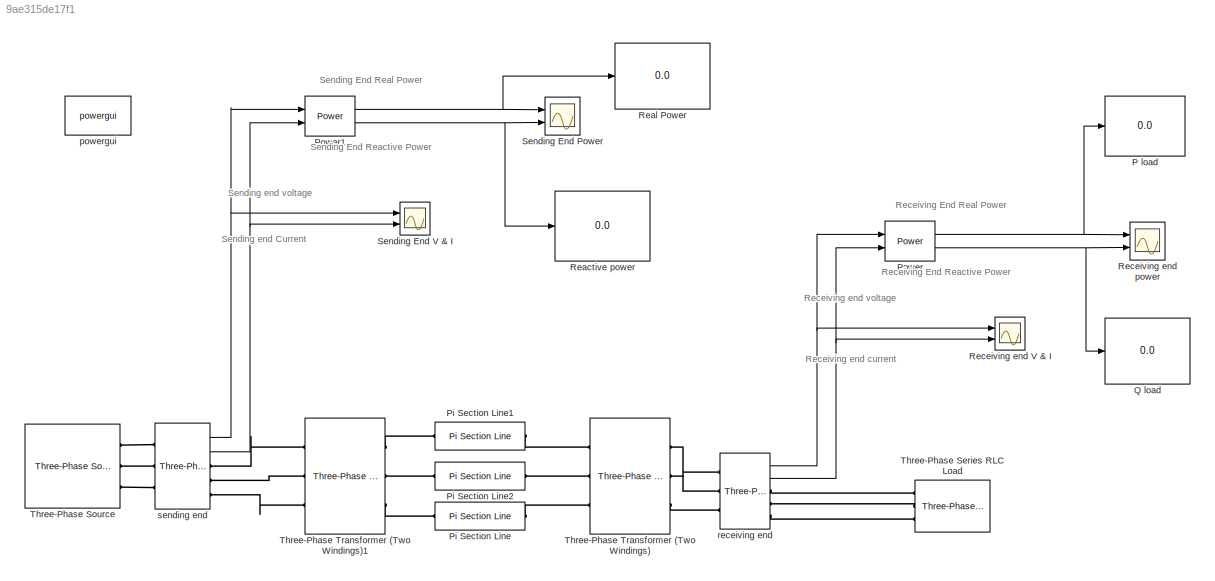
MODEL slx_9ae315de17f1
KIND model
CONFIG AbsTol = auto
CONFIG EnableMultiTasking = off
CONFIG FixedStep = auto
CONFIG MaxStep = auto
CONFIG MinStep = auto
CONFIG RelTol = 1e-3
CONFIG SampleTimeConstraint = Unconstrained
CONFIG Solver = ode23tb
CONFIG SolverName = ode23tb
CONFIG StartTime = 0.0
CONFIG StopTime = 1
BLOCK [Display] P load
  Decimation = 1
  Ports = [1]
BLOCK [Reference] Pi Section Line  REF=powerlib/Elements/Pi Section Line
  AttributesFormatString = \n
  Ports = [0, 0, 0, 0, 0, 1, 1]
  SourceBlock = powerlib/Elements/Pi Section Line
  SourceProductBaseCode = PS
  SourceProductName = Simscape Electrical
  SourceType = Pi Section Line
BLOCK [Reference] Pi Section Line1  REF=powerlib/Elements/Pi Section Line
  AttributesFormatString = \n
  Ports = [0, 0, 0, 0, 0, 1, 1]
  SourceBlock = powerlib/Elements/Pi Section Line
  SourceProductBaseCode = PS
  SourceProductName = Simscape Electrical
  SourceType = Pi Section Line
BLOCK [Reference] Pi Section Line2  REF=powerlib/Elements/Pi Section Line
  AttributesFormatString = \n
  Ports = [0, 0, 0, 0, 0, 1, 1]
  SourceBlock = powerlib/Elements/Pi Section Line
  SourceProductBaseCode = PS
  SourceProductName = Simscape Electrical
  SourceType = Pi Section Line
BLOCK [Reference] Power  REF=powerlib_meascontrol/Measurements/Power
  Ports = [2, 2]
  SourceBlock = powerlib_meascontrol/Measurements/Power
  SourceProductBaseCode = PS
  SourceProductName = Simscape Electrical
  SourceType = Power
BLOCK [Reference] Power1  REF=powerlib_meascontrol/Measurements/Power
  Ports = [2, 2]
  SourceBlock = powerlib_meascontrol/Measurements/Power
  SourceProductBaseCode = PS
  SourceProductName = Simscape Electrical
  SourceType = Power
BLOCK [Display] Q load
  Decimation = 1
  Ports = [1]
BLOCK [Display] Reactive power
  Decimation = 1
  Ports = [1]
BLOCK [Display] Real Power
  Decimation = 1
  Ports = [1]
BLOCK [Scope] Receiving end V & I
  Floating = off
  NumInputPorts = 2
  Ports = [2]
  ScopeSpecificationString = Simulink.scopes.TimeScopeBlockCfg('CurrentConfiguration', extmgr.ConfigurationSet(extmgr.Configuration('Core','General UI',true),extmgr.Configuration('Core','Source UI',true),extmgr.Configuration('Sources','WiredSimulink',true,'DataLoggingVariableName','ScopeData3'),extmgr.Configuration('Visuals','Time Domain',true,'SerializedDisplays',{struct('MinYLimReal','-9800.59055','MaxYLimReal','10279.415',...<+2256ch>
BLOCK [Scope] Receiving end power
  Floating = off
  NumInputPorts = 2
  Ports = [2]
  ScopeSpecificationString = Simulink.scopes.TimeScopeBlockCfg('CurrentConfiguration', extmgr.ConfigurationSet(extmgr.Configuration('Core','General UI',true),extmgr.Configuration('Core','Source UI',true),extmgr.Configuration('Sources','WiredSimulink',true,'DataLoggingVariableName','ScopeData2'),extmgr.Configuration('Visuals','Time Domain',true,'SerializedDisplays',{struct('MinYLimReal','399590.84842','MaxYLimReal','403773.433...<+2199ch>
BLOCK [Scope] Sending End Power
  Floating = off
  NumInputPorts = 2
  Ports = [2]
  ScopeSpecificationString = Simulink.scopes.TimeScopeBlockCfg('CurrentConfiguration', extmgr.ConfigurationSet(extmgr.Configuration('Core','General UI',true),extmgr.Configuration('Core','Source UI',true),extmgr.Configuration('Sources','WiredSimulink',true,'DataLoggingVariableName','ScopeData1'),extmgr.Configuration('Visuals','Time Domain',true,'SerializedDisplays',{struct('MinYLimReal','-120442.39718','MaxYLimReal','830990.51...<+2208ch>
BLOCK [Scope] Sending End V & I
  Floating = off
  NumInputPorts = 2
  Ports = [2]
  ScopeSpecificationString = Simulink.scopes.TimeScopeBlockCfg('CurrentConfiguration', extmgr.ConfigurationSet(extmgr.Configuration('Core','General UI',true),extmgr.Configuration('Core','Source UI',true),extmgr.Configuration('Sources','WiredSimulink',true),extmgr.Configuration('Visuals','Time Domain',true,'SerializedDisplays',{struct('MinYLimReal','-1448.46523','MaxYLimReal','9481.63643','YLabelReal','','MinYLimMag','  0.0000...<+2182ch>
BLOCK [Reference] Three-Phase Series RLC Load  REF=powerlib/Elements/Three-Phase
Series RLC Load
  AttributesFormatString = \n
  Ports = [0, 0, 0, 0, 0, 3]
  SourceBlock = powerlib/Elements/Three-Phase\nSeries RLC Load
  SourceProductBaseCode = PS
  SourceProductName = Simscape Electrical
  SourceType = Three-Phase Series RLC Load
BLOCK [Reference] Three-Phase Source  REF=powerlib/Electrical
Sources/Three-Phase Source
  Ports = [0, 0, 0, 0, 0, 0, 3]
  SourceBlock = powerlib/Electrical\nSources/Three-Phase Source
  SourceProductBaseCode = PS
  SourceProductName = Simscape Electrical
  SourceType = Three-Phase Source
BLOCK [Reference] Three-Phase Transformer (Two Windings)  REF=powerlib/Elements/Three-Phase
Transformer
(Two Windings)
  Ports = [0, 0, 0, 0, 0, 3, 3]
  SourceBlock = powerlib/Elements/Three-Phase\nTransformer\n(Two Windings)
  SourceProductBaseCode = PS
  SourceProductName = Simscape Electrical
  SourceType = Three-Phase Transformer (Two Windings)
BLOCK [Reference] Three-Phase Transformer (Two Windings)1  REF=powerlib/Elements/Three-Phase
Transformer
(Two Windings)
  Ports = [0, 0, 0, 0, 0, 3, 3]
  SourceBlock = powerlib/Elements/Three-Phase\nTransformer\n(Two Windings)
  SourceProductBaseCode = PS
  SourceProductName = Simscape Electrical
  SourceType = Three-Phase Transformer (Two Windings)
BLOCK [Reference] powergui  REF=powerlib/powergui
  Ports = []
  Priority = 1
  SourceBlock = powerlib/powergui
  SourceProductBaseCode = PS
  SourceProductName = Simscape Electrical
  SourceType = PSB option menu block
BLOCK [Reference] receiving end  REF=powerlib/Measurements/Three-Phase
V-I Measurement
  Ports = [0, 2, 0, 0, 0, 3, 3]
  SourceBlock = powerlib/Measurements/Three-Phase\nV-I Measurement
  SourceProductBaseCode = PS
  SourceProductName = Simscape Electrical
  SourceType = Three-Phase VI Measurement
BLOCK [Reference] sending end  REF=powerlib/Measurements/Three-Phase
V-I Measurement
  Ports = [0, 2, 0, 0, 0, 3, 3]
  SourceBlock = powerlib/Measurements/Three-Phase\nV-I Measurement
  SourceProductBaseCode = PS
  SourceProductName = Simscape Electrical
  SourceType = Three-Phase VI Measurement
ANNOTATION (root): Receiving End Reactive Power
ANNOTATION (root): Receiving End Real Power
ANNOTATION (root): Receiving end current
ANNOTATION (root): Receiving end voltage
ANNOTATION (root): Sending End Reactive Power
ANNOTATION (root): Sending End Real Power
ANNOTATION (root): Sending end Current
ANNOTATION (root): Sending end voltage
NET Power1:1 -> Real Power:1, Sending End Power:1
NET Power1:2 -> Reactive power:1, Sending End Power:2
NET Power:1 -> P load:1, Receiving end power:1
NET Power:2 -> Q load:1, Receiving end power:2
NET receiving end:1 -> Power:1, Receiving end V & I:1
NET receiving end:2 -> Power:2, Receiving end V & I:2
NET sending end:1 -> Power1:1, Sending End V & I:1
NET sending end:2 -> Power1:2, Sending End V & I:2
PLINE Pi Section Line1:LConn1 -- Three-Phase Transformer (Two Windings)1:RConn1
PLINE Pi Section Line1:RConn1 -- Three-Phase Transformer (Two Windings):LConn1
PLINE Pi Section Line2:LConn1 -- Three-Phase Transformer (Two Windings)1:RConn2
PLINE Pi Section Line2:RConn1 -- Three-Phase Transformer (Two Windings):LConn2
PLINE Pi Section Line:LConn1 -- Three-Phase Transformer (Two Windings)1:RConn3
PLINE Pi Section Line:RConn1 -- Three-Phase Transformer (Two Windings):LConn3
PLINE Three-Phase Series RLC Load:LConn1 -- receiving end:RConn1
PLINE Three-Phase Series RLC Load:LConn2 -- receiving end:RConn2
PLINE Three-Phase Series RLC Load:LConn3 -- receiving end:RConn3
PLINE Three-Phase Source:RConn1 -- sending end:LConn1
PLINE Three-Phase Source:RConn2 -- sending end:LConn2
PLINE Three-Phase Source:RConn3 -- sending end:LConn3
PLINE Three-Phase Transformer (Two Windings)1:LConn1 -- sending end:RConn1
PLINE Three-Phase Transformer (Two Windings)1:LConn2 -- sending end:RConn2
PLINE Three-Phase Transformer (Two Windings)1:LConn3 -- sending end:RConn3
PLINE Three-Phase Transformer (Two Windings):RConn1 -- receiving end:LConn1
PLINE Three-Phase Transformer (Two Windings):RConn2 -- receiving end:LConn2
PLINE Three-Phase Transformer (Two Windings):RConn3 -- receiving end:LConn3
note: NET lines group one-source signal fan-out (src -> all destinations, sorted); 1:1 wires keep LINE
